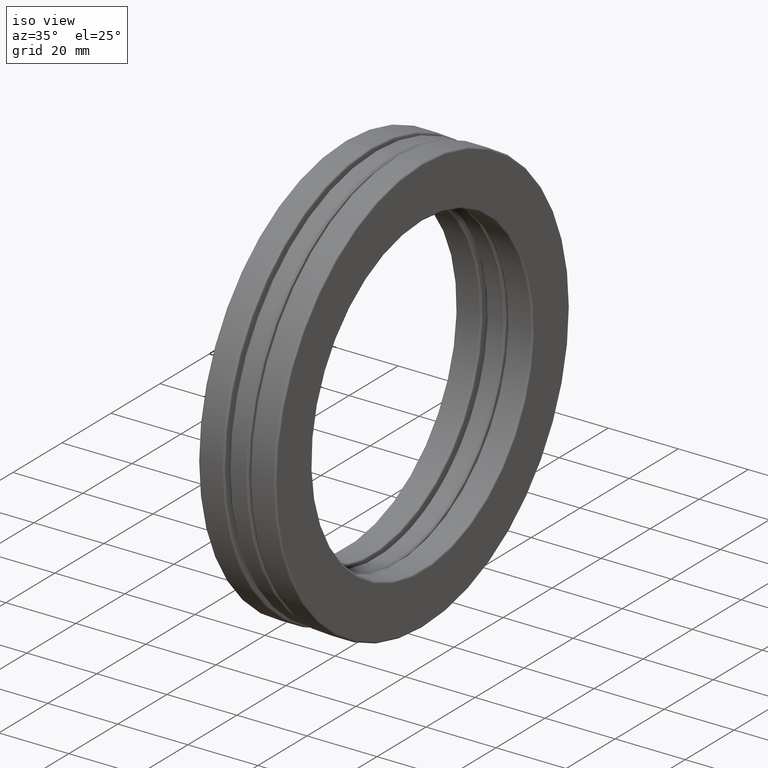
[diagram: clean part render]
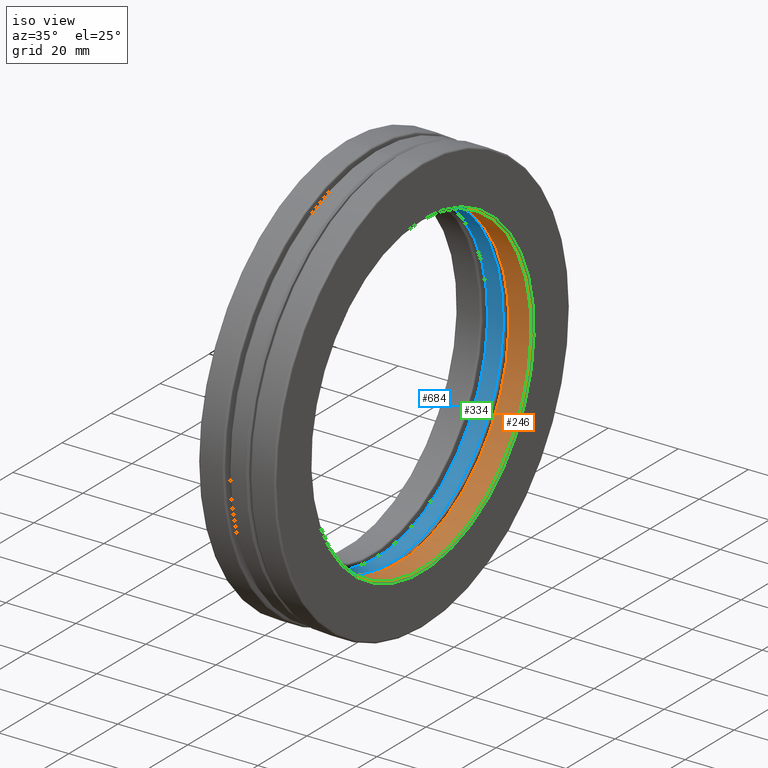
[diagram: same view with three faces highlighted in distinct colors, each labeled with its STEP entity id]
A machine part, iso view with three faces highlighted in distinct colors.
Their STEP definitions:

[orange] entity #246 — the highlighted cylindrical surface (bore or boss wall) has radius 44.9961 mm, axis along (-1, -0, -0).
#19 = DIRECTION ( 'NONE',  ( -1.000000000000000000, -0.0000000000000000000, -0.0000000000000000000 ) ) ;
#121 = FACE_OUTER_BOUND ( 'NONE', #717, .T. ) ;
#172 = VERTEX_POINT ( 'NONE', #516 ) ;
#181 = AXIS2_PLACEMENT_3D ( 'NONE', #663, #19, #602 ) ;
#191 = AXIS2_PLACEMENT_3D ( 'NONE', #245, #564, #561 ) ;
#199 = DIRECTION ( 'NONE',  ( 0.0000000000000000000, 0.0000000000000000000, 1.000000000000000000 ) ) ;
#220 = FACE_OUTER_BOUND ( 'NONE', #552, .T. ) ;
#245 = CARTESIAN_POINT ( 'NONE',  ( 0.0000000000000000000, 0.0000000000000000000, 0.0000000000000000000 ) ) ;
#246 = ADVANCED_FACE ( 'NONE', ( #121, #220 ), #744, .F. ) ;
#288 = AXIS2_PLACEMENT_3D ( 'NONE', #824, #700, #199 ) ;
#303 = CIRCLE ( 'NONE', #288, 1.771499999999999900 ) ;
#317 = CIRCLE ( 'NONE', #181, 1.771499999999999900 ) ;
#363 = EDGE_CURVE ( 'NONE', #702, #702, #303, .T. ) ;
#516 = CARTESIAN_POINT ( 'NONE',  ( 0.1643362200000008100, 0.0000000000000000000, 1.771499999999999900 ) ) ;
#547 = CARTESIAN_POINT ( 'NONE',  ( 0.4130000000000010300, 0.0000000000000000000, 1.771499999999999900 ) ) ;
#552 = EDGE_LOOP ( 'NONE', ( #660 ) ) ;
#553 = ORIENTED_EDGE ( 'NONE', *, *, #776, .T. ) ;
#561 = DIRECTION ( 'NONE',  ( 0.0000000000000000000, 0.0000000000000000000, 1.000000000000000000 ) ) ;
#564 = DIRECTION ( 'NONE',  ( -1.000000000000000000, -0.0000000000000000000, -0.0000000000000000000 ) ) ;
#602 = DIRECTION ( 'NONE',  ( 0.0000000000000000000, 0.0000000000000000000, 1.000000000000000000 ) ) ;
#660 = ORIENTED_EDGE ( 'NONE', *, *, #363, .F. ) ;
#663 = CARTESIAN_POINT ( 'NONE',  ( 0.1643362200000008100, 0.0000000000000000000, 0.0000000000000000000 ) ) ;
#700 = DIRECTION ( 'NONE',  ( -1.000000000000000000, -0.0000000000000000000, -0.0000000000000000000 ) ) ;
#702 = VERTEX_POINT ( 'NONE', #547 ) ;
#717 = EDGE_LOOP ( 'NONE', ( #553 ) ) ;
#744 = CYLINDRICAL_SURFACE ( 'NONE', #191, 1.771499999999999900 ) ;
#776 = EDGE_CURVE ( 'NONE', #172, #172, #317, .T. ) ;
#824 = CARTESIAN_POINT ( 'NONE',  ( 0.4130000000000010300, 0.0000000000000000000, 0.0000000000000000000 ) ) ;

[blue] entity #684 — the highlighted cylindrical surface (bore or boss wall) has radius 45.5041 mm, axis along (-1, -0, -0).
#22 = DIRECTION ( 'NONE',  ( 0.0000000000000000000, 0.0000000000000000000, 1.000000000000000000 ) ) ;
#33 = CARTESIAN_POINT ( 'NONE',  ( 0.08825000000000003700, 0.0000000000000000000, 1.791500000000000300 ) ) ;
#52 = AXIS2_PLACEMENT_3D ( 'NONE', #217, #656, #22 ) ;
#112 = DIRECTION ( 'NONE',  ( 0.0000000000000000000, 0.0000000000000000000, 1.000000000000000000 ) ) ;
#159 = EDGE_CURVE ( 'NONE', #513, #513, #633, .T. ) ;
#183 = DIRECTION ( 'NONE',  ( -1.000000000000000000, -0.0000000000000000000, -0.0000000000000000000 ) ) ;
#187 = ORIENTED_EDGE ( 'NONE', *, *, #259, .T. ) ;
#190 = FACE_OUTER_BOUND ( 'NONE', #415, .T. ) ;
#217 = CARTESIAN_POINT ( 'NONE',  ( 0.0000000000000000000, 0.0000000000000000000, 0.0000000000000000000 ) ) ;
#233 = DIRECTION ( 'NONE',  ( -1.000000000000000000, -0.0000000000000000000, -0.0000000000000000000 ) ) ;
#253 = CARTESIAN_POINT ( 'NONE',  ( -0.08824999999999996700, 0.0000000000000000000, 0.0000000000000000000 ) ) ;
#259 = EDGE_CURVE ( 'NONE', #738, #738, #398, .T. ) ;
#278 = CYLINDRICAL_SURFACE ( 'NONE', #52, 1.791500000000000300 ) ;
#349 = FACE_OUTER_BOUND ( 'NONE', #477, .T. ) ;
#398 = CIRCLE ( 'NONE', #403, 1.791500000000000300 ) ;
#403 = AXIS2_PLACEMENT_3D ( 'NONE', #253, #183, #112 ) ;
#415 = EDGE_LOOP ( 'NONE', ( #187 ) ) ;
#467 = ORIENTED_EDGE ( 'NONE', *, *, #159, .F. ) ;
#477 = EDGE_LOOP ( 'NONE', ( #467 ) ) ;
#513 = VERTEX_POINT ( 'NONE', #33 ) ;
#607 = CARTESIAN_POINT ( 'NONE',  ( -0.08824999999999996700, 0.0000000000000000000, 1.791500000000000300 ) ) ;
#633 = CIRCLE ( 'NONE', #768, 1.791500000000000300 ) ;
#656 = DIRECTION ( 'NONE',  ( -1.000000000000000000, -0.0000000000000000000, -0.0000000000000000000 ) ) ;
#684 = ADVANCED_FACE ( 'NONE', ( #349, #190 ), #278, .F. ) ;
#738 = VERTEX_POINT ( 'NONE', #607 ) ;
#743 = DIRECTION ( 'NONE',  ( 0.0000000000000000000, 0.0000000000000000000, 1.000000000000000000 ) ) ;
#768 = AXIS2_PLACEMENT_3D ( 'NONE', #803, #233, #743 ) ;
#803 = CARTESIAN_POINT ( 'NONE',  ( 0.08825000000000003700, 0.0000000000000000000, 0.0000000000000000000 ) ) ;

[green] entity #334 — the highlighted toroidal blend (fillet) surface has major radius 45.5041 mm and minor (blend) radius 0.508 mm.
#14 = ORIENTED_EDGE ( 'NONE', *, *, #46, .F. ) ;
#21 = AXIS2_PLACEMENT_3D ( 'NONE', #68, #128, #703 ) ;
#46 = EDGE_CURVE ( 'NONE', #590, #590, #335, .T. ) ;
#68 = CARTESIAN_POINT ( 'NONE',  ( 0.4330000000000002700, 0.0000000000000000000, 0.0000000000000000000 ) ) ;
#110 = AXIS2_PLACEMENT_3D ( 'NONE', #332, #517, #527 ) ;
#117 = EDGE_LOOP ( 'NONE', ( #367 ) ) ;
#128 = DIRECTION ( 'NONE',  ( -1.000000000000000000, -0.0000000000000000000, -0.0000000000000000000 ) ) ;
#199 = DIRECTION ( 'NONE',  ( 0.0000000000000000000, 0.0000000000000000000, 1.000000000000000000 ) ) ;
#260 = EDGE_LOOP ( 'NONE', ( #14 ) ) ;
#288 = AXIS2_PLACEMENT_3D ( 'NONE', #824, #700, #199 ) ;
#303 = CIRCLE ( 'NONE', #288, 1.771499999999999900 ) ;
#332 = CARTESIAN_POINT ( 'NONE',  ( 0.4130000000000010300, 0.0000000000000000000, 0.0000000000000000000 ) ) ;
#334 = ADVANCED_FACE ( 'NONE', ( #396, #719 ), #387, .T. ) ;
#335 = CIRCLE ( 'NONE', #21, 1.791500000000000100 ) ;
#363 = EDGE_CURVE ( 'NONE', #702, #702, #303, .T. ) ;
#367 = ORIENTED_EDGE ( 'NONE', *, *, #363, .T. ) ;
#387 = TOROIDAL_SURFACE ( 'NONE', #110, 1.791500000000000100, 0.01999999999999965000 ) ;
#396 = FACE_OUTER_BOUND ( 'NONE', #260, .T. ) ;
#517 = DIRECTION ( 'NONE',  ( -1.000000000000000000, -0.0000000000000000000, -0.0000000000000000000 ) ) ;
#527 = DIRECTION ( 'NONE',  ( 0.0000000000000000000, 0.0000000000000000000, 1.000000000000000000 ) ) ;
#547 = CARTESIAN_POINT ( 'NONE',  ( 0.4130000000000010300, 0.0000000000000000000, 1.771499999999999900 ) ) ;
#590 = VERTEX_POINT ( 'NONE', #795 ) ;
#700 = DIRECTION ( 'NONE',  ( -1.000000000000000000, -0.0000000000000000000, -0.0000000000000000000 ) ) ;
#702 = VERTEX_POINT ( 'NONE', #547 ) ;
#703 = DIRECTION ( 'NONE',  ( 0.0000000000000000000, 0.0000000000000000000, 1.000000000000000000 ) ) ;
#719 = FACE_OUTER_BOUND ( 'NONE', #117, .T. ) ;
#795 = CARTESIAN_POINT ( 'NONE',  ( 0.4330000000000002700, 0.0000000000000000000, 1.791500000000000100 ) ) ;
#824 = CARTESIAN_POINT ( 'NONE',  ( 0.4130000000000010300, 0.0000000000000000000, 0.0000000000000000000 ) ) ;